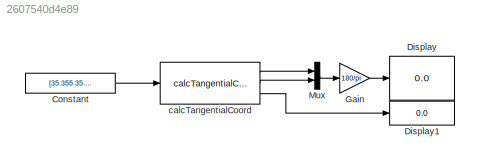
MODEL slx_2607540d4e89
KIND model
CONFIG AbsTol = auto
CONFIG EnableMultiTasking = off
CONFIG FixedStep = auto
CONFIG MaxStep = auto
CONFIG MinStep = auto
CONFIG RelTol = 1e-3
CONFIG SampleTimeConstraint = Unconstrained
CONFIG Solver = VariableStepAuto
CONFIG SolverName = VariableStepAuto
CONFIG StartTime = 0.0
CONFIG StopTime = 0
BLOCK [Constant] Constant
  Value = [35.355 35.355 86.60]
BLOCK [Display] Display
  Decimation = 1
  Ports = [1]
BLOCK [Display] Display1
  Decimation = 1
  Ports = [1]
BLOCK [Gain] Gain
  Gain = 180/pi
BLOCK [Mux] Mux
  DisplayOption = bar
  Inputs = 2
  Ports = [2, 1]
BLOCK [Reference] calcTangentialCoord  REF=calcTangentialCoord_ul/calcTangentialCoord
  Ports = [1, 3]
  SourceBlock = calcTangentialCoord_ul/calcTangentialCoord
  SourceType = SubSystem
LINE Constant:1 -> calcTangentialCoord:1
LINE Gain:1 -> Display:1
LINE Mux:1 -> Gain:1
LINE calcTangentialCoord:1 -> Mux:1
LINE calcTangentialCoord:2 -> Mux:2
LINE calcTangentialCoord:3 -> Display1:1
